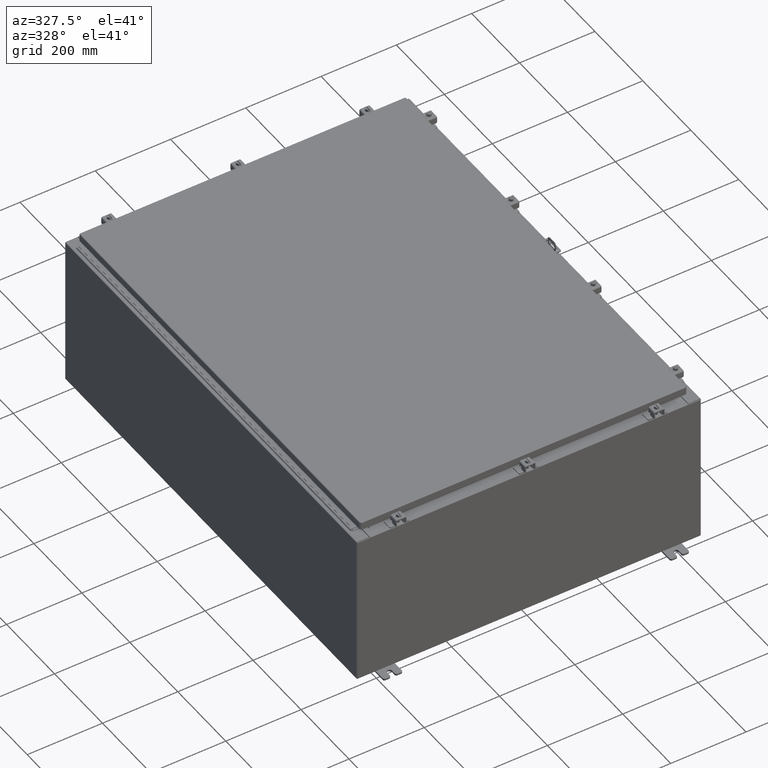
[diagram: clean part render]
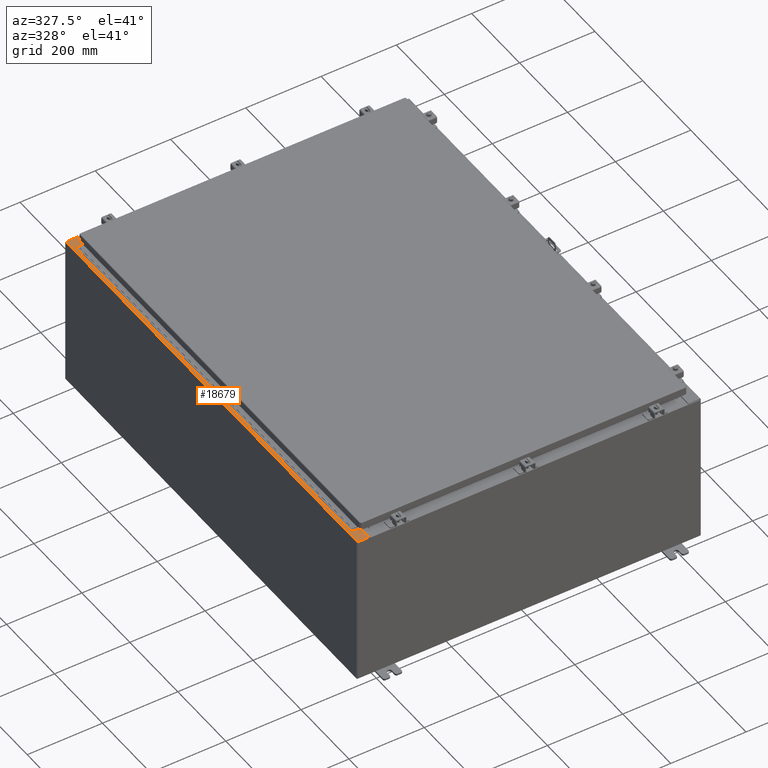
[diagram: same view with one face highlighted and labeled with its STEP entity id]
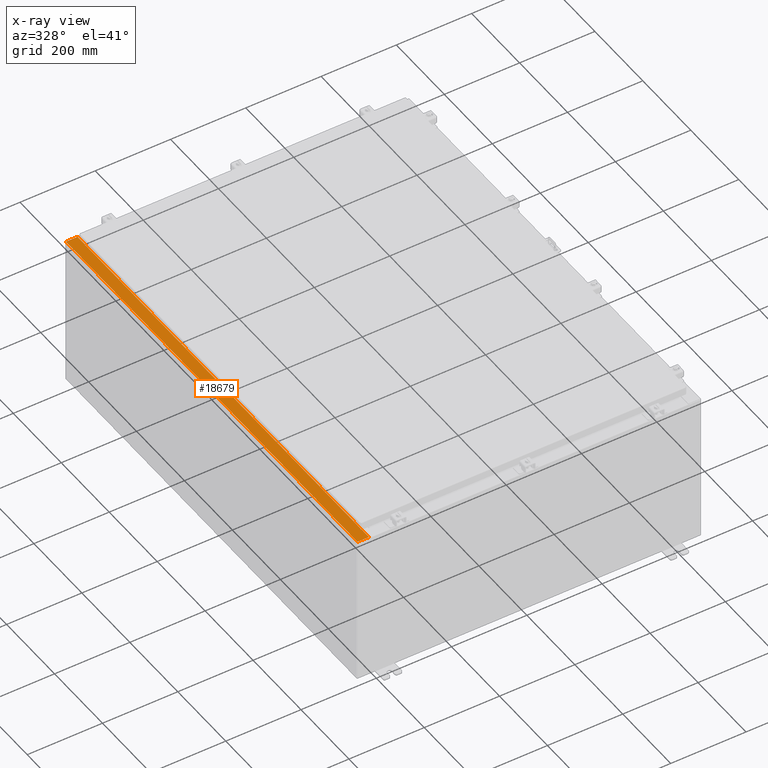
[diagram: x-ray of the same camera — body ghosted, the highlighted face saturated]
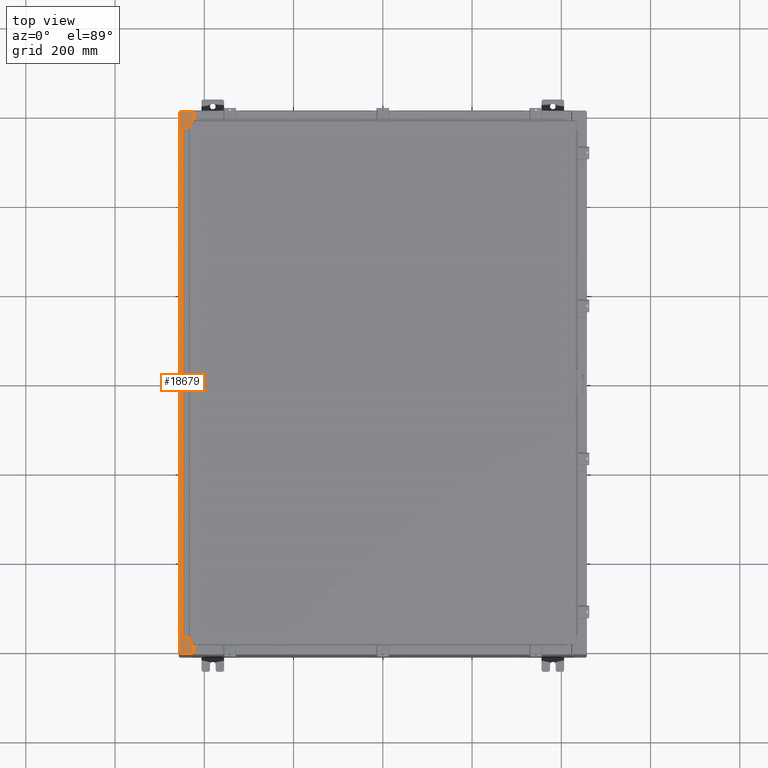
[diagram: same view with one face highlighted and labeled with its STEP entity id]
A machine part, auxiliary view. The second image highlights one B-rep face of the part: STEP entity #18679.
The next image is the same camera in x-ray: the body ghosted, the highlighted face saturated — about 0% of this face is hidden behind the body in this view.
A second angle (top view) of the same face is appended — the face is thin or edge-on in the first view.
In plain terms, the highlighted planar face has unit normal (0, 0, -1).
Its self-contained STEP definition (entity closure, byte-faithful):
#1159 = VERTEX_POINT ( 'NONE', #40550 ) ;
#1965 = ORIENTED_EDGE ( 'NONE', *, *, #34652, .F. ) ;
#3007 = CARTESIAN_POINT ( 'NONE',  ( -8.545434926991847500E-014, 0.0000000000000000000, 15.92530000000009400 ) ) ;
#3437 = CARTESIAN_POINT ( 'NONE',  ( -16.75005000000006200, 22.61242499999999100, 15.92530000000000400 ) ) ;
#4039 = DIRECTION ( 'NONE',  ( 3.161623214578966600E-031, 1.000000000000000000, 1.691333035666432100E-045 ) ) ;
#4366 = DIRECTION ( 'NONE',  ( -5.349571789159788500E-015, -0.0000000000000000000, 1.000000000000000000 ) ) ;
#4434 = VERTEX_POINT ( 'NONE', #19110 ) ;
#4733 = EDGE_CURVE ( 'NONE', #15078, #12736, #8587, .T. ) ;
#5068 = VECTOR ( 'NONE', #17519, 39.37007874015748100 ) ;
#5774 = VERTEX_POINT ( 'NONE', #52453 ) ;
#6700 = ORIENTED_EDGE ( 'NONE', *, *, #22327, .F. ) ;
#7171 = LINE ( 'NONE', #35144, #17041 ) ;
#7212 = DIRECTION ( 'NONE',  ( -1.000000000000000000, 0.0000000000000000000, -5.349571789159788500E-015 ) ) ;
#7658 = DIRECTION ( 'NONE',  ( 1.000000000000000000, 0.0000000000000000000, 0.0000000000000000000 ) ) ;
#7764 = LINE ( 'NONE', #29160, #30087 ) ;
#8429 = EDGE_CURVE ( 'NONE', #12793, #4434, #46923, .T. ) ;
#8587 = LINE ( 'NONE', #29484, #36787 ) ;
#8642 = ORIENTED_EDGE ( 'NONE', *, *, #30800, .F. ) ;
#8991 = EDGE_CURVE ( 'NONE', #16234, #42290, #24820, .T. ) ;
#9316 = EDGE_CURVE ( 'NONE', #4434, #5774, #28687, .T. ) ;
#9321 = FACE_OUTER_BOUND ( 'NONE', #48207, .T. ) ;
#9432 = CARTESIAN_POINT ( 'NONE',  ( -16.71270000000006200, 22.59374999999999300, 15.92530000000000400 ) ) ;
#10034 = VERTEX_POINT ( 'NONE', #31862 ) ;
#10829 = CARTESIAN_POINT ( 'NONE',  ( -16.75005000000006200, 22.63109999999999300, 15.92530000000000400 ) ) ;
#11383 = ORIENTED_EDGE ( 'NONE', *, *, #8429, .T. ) ;
#12367 = EDGE_CURVE ( 'NONE', #15078, #5774, #43381, .T. ) ;
#12513 = ORIENTED_EDGE ( 'NONE', *, *, #40178, .F. ) ;
#12736 = VERTEX_POINT ( 'NONE', #35203 ) ;
#12793 = VERTEX_POINT ( 'NONE', #52012 ) ;
#15078 = VERTEX_POINT ( 'NONE', #39116 ) ;
#16234 = VERTEX_POINT ( 'NONE', #19490 ) ;
#16840 = DIRECTION ( 'NONE',  ( 1.000000000000000000, -3.566381192773192400E-015, 5.349571789159789300E-015 ) ) ;
#17041 = VECTOR ( 'NONE', #43253, 39.37007874015748100 ) ;
#17519 = DIRECTION ( 'NONE',  ( -0.0000000000000000000, -1.000000000000000000, -0.0000000000000000000 ) ) ;
#17692 = CARTESIAN_POINT ( 'NONE',  ( -17.91230000000005900, 23.92529999999998900, 15.92529999999999800 ) ) ;
#17912 = ORIENTED_EDGE ( 'NONE', *, *, #9316, .T. ) ;
#18679 = ADVANCED_FACE ( 'NONE', ( #9321 ), #28142, .F. ) ;
#19110 = CARTESIAN_POINT ( 'NONE',  ( -16.69970000000006000, 23.92529999999998900, 15.92530000000000400 ) ) ;
#19490 = CARTESIAN_POINT ( 'NONE',  ( -16.75005000000006200, 22.59374999999999300, 15.92530000000000400 ) ) ;
#19556 = CARTESIAN_POINT ( 'NONE',  ( -16.75005000000006200, 22.59374999999999300, 15.92530000000000400 ) ) ;
#20167 = DIRECTION ( 'NONE',  ( 3.161623214578966600E-031, 1.000000000000000000, 1.691333035666432100E-045 ) ) ;
#20548 = CARTESIAN_POINT ( 'NONE',  ( -16.71270000000006200, -22.59374999999998200, 15.92530000000000400 ) ) ;
#21277 = VECTOR ( 'NONE', #38518, 39.37007874015748100 ) ;
#21760 = DIRECTION ( 'NONE',  ( -1.000000000000000000, -8.144358738339257800E-032, -5.349571789159789300E-015 ) ) ;
#22211 = VECTOR ( 'NONE', #36025, 39.37007874015748100 ) ;
#22327 = EDGE_CURVE ( 'NONE', #40237, #10034, #7171, .T. ) ;
#22596 = EDGE_CURVE ( 'NONE', #40908, #1159, #39887, .T. ) ;
#23610 = EDGE_CURVE ( 'NONE', #12736, #1159, #7764, .T. ) ;
#24820 = LINE ( 'NONE', #19556, #22211 ) ;
#24869 = VECTOR ( 'NONE', #20167, 39.37007874015748100 ) ;
#26208 = VECTOR ( 'NONE', #28873, 39.37007874015748100 ) ;
#27386 = ORIENTED_EDGE ( 'NONE', *, *, #8991, .F. ) ;
#28142 = PLANE ( 'NONE',  #50884 ) ;
#28687 = LINE ( 'NONE', #46582, #52061 ) ;
#28793 = CIRCLE ( 'NONE', #51267, 0.01867499999999949400 ) ;
#28873 = DIRECTION ( 'NONE',  ( 1.000000000000000000, -8.681145560799821800E-014, 0.0000000000000000000 ) ) ;
#29160 = CARTESIAN_POINT ( 'NONE',  ( -16.69970000000006000, 5.279815919650428700E-030, 15.92530000000000400 ) ) ;
#29344 = AXIS2_PLACEMENT_3D ( 'NONE', #29497, #4366, #33708 ) ;
#29484 = CARTESIAN_POINT ( 'NONE',  ( -1.707810892213751000E-013, -23.92530000000005300, 15.92530000000009400 ) ) ;
#29497 = CARTESIAN_POINT ( 'NONE',  ( -16.75005000000006200, -22.61242499999998400, 15.92530000000000400 ) ) ;
#30087 = VECTOR ( 'NONE', #4039, 39.37007874015748100 ) ;
#30800 = EDGE_CURVE ( 'NONE', #42290, #40237, #46872, .T. ) ;
#31311 = VECTOR ( 'NONE', #40195, 39.37007874015748100 ) ;
#31341 = ORIENTED_EDGE ( 'NONE', *, *, #4733, .T. ) ;
#31604 = VERTEX_POINT ( 'NONE', #10829 ) ;
#31862 = CARTESIAN_POINT ( 'NONE',  ( -16.75005000000006200, -22.59374999999998200, 15.92530000000000400 ) ) ;
#32338 = DIRECTION ( 'NONE',  ( 5.349571789159788500E-015, 0.0000000000000000000, -1.000000000000000000 ) ) ;
#32773 = DIRECTION ( 'NONE',  ( -5.349571789159788500E-015, -0.0000000000000000000, 1.000000000000000000 ) ) ;
#33708 = DIRECTION ( 'NONE',  ( 1.000000000000000000, 0.0000000000000000000, 0.0000000000000000000 ) ) ;
#34304 = ORIENTED_EDGE ( 'NONE', *, *, #50692, .F. ) ;
#34652 = EDGE_CURVE ( 'NONE', #12793, #31604, #53335, .T. ) ;
#35144 = CARTESIAN_POINT ( 'NONE',  ( -16.71270000000006200, -22.59374999999998200, 15.92530000000000400 ) ) ;
#35203 = CARTESIAN_POINT ( 'NONE',  ( -16.69970000000006000, -23.92529999999998600, 15.92530000000000400 ) ) ;
#36025 = DIRECTION ( 'NONE',  ( 1.000000000000000000, 0.0000000000000000000, 0.0000000000000000000 ) ) ;
#36079 = CARTESIAN_POINT ( 'NONE',  ( -16.69970000000006000, 22.63109999999999600, 15.92530000000000400 ) ) ;
#36787 = VECTOR ( 'NONE', #16840, 39.37007874015748100 ) ;
#38518 = DIRECTION ( 'NONE',  ( -0.0000000000000000000, 1.000000000000000000, -0.0000000000000000000 ) ) ;
#39116 = CARTESIAN_POINT ( 'NONE',  ( -17.91230000000005900, -23.92529999999998600, 15.92529999999999800 ) ) ;
#39887 = LINE ( 'NONE', #49571, #26208 ) ;
#40178 = EDGE_CURVE ( 'NONE', #31604, #16234, #28793, .T. ) ;
#40195 = DIRECTION ( 'NONE',  ( -1.000000000000000000, -8.681145560799821800E-014, 0.0000000000000000000 ) ) ;
#40237 = VERTEX_POINT ( 'NONE', #20548 ) ;
#40317 = CIRCLE ( 'NONE', #29344, 0.01867499999999949400 ) ;
#40550 = CARTESIAN_POINT ( 'NONE',  ( -16.69970000000006000, -22.63109999999998600, 15.92530000000000400 ) ) ;
#40908 = VERTEX_POINT ( 'NONE', #48810 ) ;
#40914 = CARTESIAN_POINT ( 'NONE',  ( -16.69970000000006000, 5.279815919650428700E-030, 15.92530000000000400 ) ) ;
#42290 = VERTEX_POINT ( 'NONE', #9432 ) ;
#43253 = DIRECTION ( 'NONE',  ( -1.000000000000000000, 0.0000000000000000000, 0.0000000000000000000 ) ) ;
#43381 = LINE ( 'NONE', #17692, #21277 ) ;
#46075 = ORIENTED_EDGE ( 'NONE', *, *, #12367, .F. ) ;
#46582 = CARTESIAN_POINT ( 'NONE',  ( -8.545434926991847500E-014, 23.92529999999998900, 15.92530000000009400 ) ) ;
#46625 = CARTESIAN_POINT ( 'NONE',  ( -16.71270000000006200, 22.59374999999999300, 15.92530000000000400 ) ) ;
#46872 = LINE ( 'NONE', #46625, #5068 ) ;
#46923 = LINE ( 'NONE', #40914, #24869 ) ;
#48207 = EDGE_LOOP ( 'NONE', ( #1965, #11383, #17912, #46075, #31341, #48475, #49417, #34304, #6700, #8642, #27386, #12513 ) ) ;
#48475 = ORIENTED_EDGE ( 'NONE', *, *, #23610, .T. ) ;
#48810 = CARTESIAN_POINT ( 'NONE',  ( -16.75005000000006200, -22.63109999999998200, 15.92530000000000400 ) ) ;
#49417 = ORIENTED_EDGE ( 'NONE', *, *, #22596, .F. ) ;
#49571 = CARTESIAN_POINT ( 'NONE',  ( -16.75005000000006200, -22.63109999999998200, 15.92530000000000400 ) ) ;
#50692 = EDGE_CURVE ( 'NONE', #10034, #40908, #40317, .T. ) ;
#50884 = AXIS2_PLACEMENT_3D ( 'NONE', #3007, #32338, #7212 ) ;
#51267 = AXIS2_PLACEMENT_3D ( 'NONE', #3437, #32773, #7658 ) ;
#52012 = CARTESIAN_POINT ( 'NONE',  ( -16.69970000000006000, 22.63109999999999600, 15.92530000000000400 ) ) ;
#52061 = VECTOR ( 'NONE', #21760, 39.37007874015748100 ) ;
#52453 = CARTESIAN_POINT ( 'NONE',  ( -17.91230000000005900, 23.92529999999998900, 15.92529999999999800 ) ) ;
#53335 = LINE ( 'NONE', #36079, #31311 ) ;